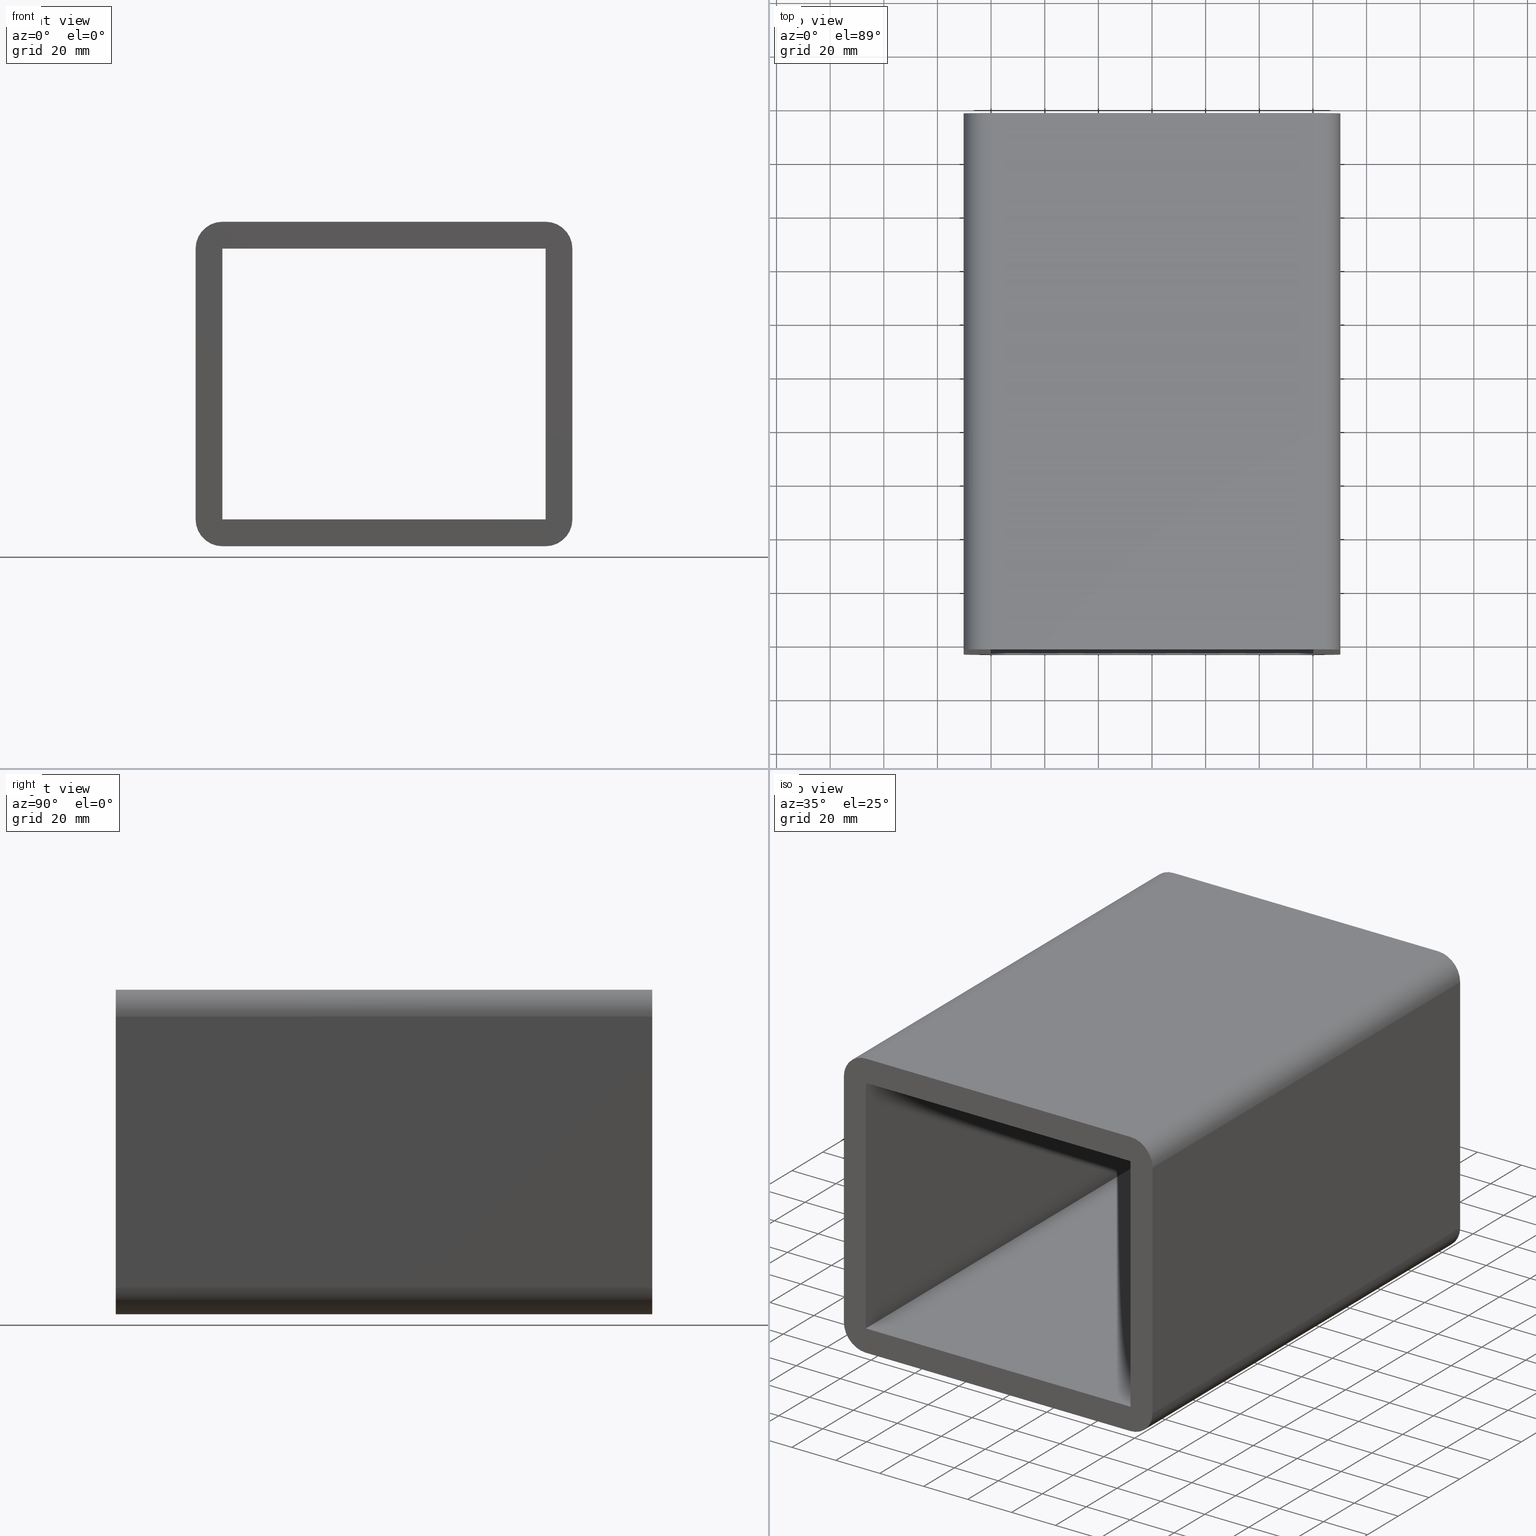
[diagram: canonical four-view strip — front | top / right | iso, engineering-drawing reading convention]
A machine part, canonical four-view strip (front | top / right | iso — engineering-drawing reading convention). The complete STEP part file that produces these views, byte-faithful:
ISO-10303-21;
HEADER;
/****************************************************************
 * Generated by software with PDElib inside                    *
 * PDElib Version v51a, created Wed 11/30/2011                  *
 * ITI Transcendata (http://www.transcendata.com/)              *
 ****************************************************************/
FILE_DESCRIPTION((''),'2;1');
FILE_NAME('C:\\RoxtecConfigurator\\CreatedFiles\\STEP\\SBTB2X1.stp','2013-02-26T13:21:57',(''),(''),'Autodesk Inventor 2013','Autodesk Inventor 2013','');
FILE_SCHEMA(('AUTOMOTIVE_DESIGN { 1 0 10303 214 1 1 1 1 }'));
ENDSEC;
DATA;
#5=APPLICATION_CONTEXT('automotive design');
#6=APPLICATION_PROTOCOL_DEFINITION('International Standard','automotive_design',2001,#5);
#7=PRODUCT_CONTEXT('',#5,'mechanical');
#8=PRODUCT('roxtec S_SF_G','roxtec S_SF_G',$,(#7));
#9=PRODUCT_RELATED_PRODUCT_CATEGORY('part',$,(#8));
#10=PRODUCT_DEFINITION_FORMATION('',$,#8);
#11=PRODUCT_DEFINITION_CONTEXT('part definition',#5,'design');
#12=PRODUCT_DEFINITION('',$,#10,#11);
#18=(NAMED_UNIT(*)PLANE_ANGLE_UNIT()SI_UNIT($,.RADIAN.));
#19=DIMENSIONAL_EXPONENTS(0.0,0.0,0.0,0.0,0.0,0.0,0.0);
#20=PLANE_ANGLE_MEASURE_WITH_UNIT(PLANE_ANGLE_MEASURE(0.0174532925),#18);
#24=(CONVERSION_BASED_UNIT('DEGREE',#20)NAMED_UNIT(#19)PLANE_ANGLE_UNIT());
#28=(NAMED_UNIT(*)SI_UNIT($,.STERADIAN.)SOLID_ANGLE_UNIT());
#32=(LENGTH_UNIT()NAMED_UNIT(*)SI_UNIT(.MILLI.,.METRE.));
#34=UNCERTAINTY_MEASURE_WITH_UNIT(LENGTH_MEASURE(0.01),#32,'DISTANCE_ACCURACY_VALUE','');
#36=(GEOMETRIC_REPRESENTATION_CONTEXT(3)GLOBAL_UNCERTAINTY_ASSIGNED_CONTEXT((#34))GLOBAL_UNIT_ASSIGNED_CONTEXT((#24,#28,#32))REPRESENTATION_CONTEXT('None','None'));
#37=AXIS2_PLACEMENT_3D('',#38,#39,#40);
#38=CARTESIAN_POINT('',(0.0,0.0,0.0));
#39=DIRECTION('',(0.0,0.0,1.0));
#40=DIRECTION('',(1.0,0.0,0.0));
#41=SHAPE_REPRESENTATION('',(#37),#36);
#42=PRODUCT_DEFINITION_SHAPE('','',#12);
#43=SHAPE_DEFINITION_REPRESENTATION(#42,#41);
#49=(NAMED_UNIT(*)PLANE_ANGLE_UNIT()SI_UNIT($,.RADIAN.));
#50=DIMENSIONAL_EXPONENTS(0.0,0.0,0.0,0.0,0.0,0.0,0.0);
#51=PLANE_ANGLE_MEASURE_WITH_UNIT(PLANE_ANGLE_MEASURE(0.0174532925),#49);
#55=(CONVERSION_BASED_UNIT('DEGREE',#51)NAMED_UNIT(#50)PLANE_ANGLE_UNIT());
#59=(NAMED_UNIT(*)SI_UNIT($,.STERADIAN.)SOLID_ANGLE_UNIT());
#63=(LENGTH_UNIT()NAMED_UNIT(*)SI_UNIT(.MILLI.,.METRE.));
#65=UNCERTAINTY_MEASURE_WITH_UNIT(LENGTH_MEASURE(0.000001),#63,'DISTANCE_ACCURACY_VALUE','');
#67=(GEOMETRIC_REPRESENTATION_CONTEXT(3)GLOBAL_UNCERTAINTY_ASSIGNED_CONTEXT((#65))GLOBAL_UNIT_ASSIGNED_CONTEXT((#55,#59,#63))REPRESENTATION_CONTEXT('','3D'));
#68=CARTESIAN_POINT('',(-60.250000000000014,0.0,-50.500000000000007));
#69=DIRECTION('',(0.0,1.0,0.0));
#70=DIRECTION('',(-0.707106781186547,0.0,-0.707106781186547));
#71=AXIS2_PLACEMENT_3D('',#68,#69,#70);
#72=CYLINDRICAL_SURFACE('',#71,10.0);
#73=CARTESIAN_POINT('',(-70.250000000000014,197.0,-50.500000000000007));
#74=VERTEX_POINT('',#73);
#75=CARTESIAN_POINT('',(-60.250000000000014,197.0,-60.500000000000007));
#76=VERTEX_POINT('',#75);
#77=CARTESIAN_POINT('',(-60.250000000000014,197.0,-50.500000000000007));
#78=DIRECTION('',(0.0,-1.0,0.0));
#79=DIRECTION('',(-0.707106781186547,0.0,-0.707106781186547));
#80=AXIS2_PLACEMENT_3D('',#77,#78,#79);
#81=CIRCLE('',#80,9.999999999999998);
#82=EDGE_CURVE('',#74,#76,#81,.T.);
#83=ORIENTED_EDGE('',*,*,#82,.T.);
#84=CARTESIAN_POINT('',(-60.250000000000014,-3.0,-60.500000000000007));
#85=VERTEX_POINT('',#84);
#86=CARTESIAN_POINT('',(-60.250000000000014,197.0,-60.500000000000007));
#87=DIRECTION('',(0.0,-1.0,0.0));
#88=VECTOR('',#87,200.0);
#89=LINE('',#86,#88);
#90=EDGE_CURVE('',#76,#85,#89,.T.);
#91=ORIENTED_EDGE('',*,*,#90,.T.);
#92=CARTESIAN_POINT('',(-70.250000000000014,-3.0,-50.500000000000007));
#93=VERTEX_POINT('',#92);
#94=CARTESIAN_POINT('',(-60.250000000000014,-3.0,-50.500000000000007));
#95=DIRECTION('',(0.0,1.0,0.0));
#96=DIRECTION('',(-0.707106781186547,0.0,-0.707106781186547));
#97=AXIS2_PLACEMENT_3D('',#94,#95,#96);
#98=CIRCLE('',#97,9.999999999999998);
#99=EDGE_CURVE('',#85,#93,#98,.T.);
#100=ORIENTED_EDGE('',*,*,#99,.T.);
#101=CARTESIAN_POINT('',(-70.250000000000014,-3.0,-50.500000000000007));
#102=DIRECTION('',(0.0,1.0,0.0));
#103=VECTOR('',#102,200.0);
#104=LINE('',#101,#103);
#105=EDGE_CURVE('',#93,#74,#104,.T.);
#106=ORIENTED_EDGE('',*,*,#105,.T.);
#107=EDGE_LOOP('',(#83,#91,#100,#106));
#108=FACE_OUTER_BOUND('',#107,.T.);
#109=ADVANCED_FACE('',(#108),#72,.T.);
#110=CARTESIAN_POINT('',(-1.053757E-014,-3.0,0.0));
#111=DIRECTION('',(0.0,1.0,0.0));
#112=DIRECTION('',(0.0,0.0,1.0));
#113=AXIS2_PLACEMENT_3D('',#110,#111,#112);
#114=PLANE('',#113);
#115=ORIENTED_EDGE('',*,*,#99,.F.);
#116=CARTESIAN_POINT('',(60.249999999999993,-3.0,-60.500000000000007));
#117=VERTEX_POINT('',#116);
#118=CARTESIAN_POINT('',(-60.25,-3.0,-60.500000000000007));
#119=DIRECTION('',(1.0,0.0,0.0));
#120=VECTOR('',#119,120.5);
#121=LINE('',#118,#120);
#122=EDGE_CURVE('',#85,#117,#121,.T.);
#123=ORIENTED_EDGE('',*,*,#122,.T.);
#124=CARTESIAN_POINT('',(70.25,-3.0,-50.500000000000007));
#125=VERTEX_POINT('',#124);
#126=CARTESIAN_POINT('',(60.249999999999993,-3.0,-50.500000000000007));
#127=DIRECTION('',(0.0,1.0,0.0));
#128=DIRECTION('',(0.707106781186547,0.0,-0.707106781186547));
#129=AXIS2_PLACEMENT_3D('',#126,#127,#128);
#130=CIRCLE('',#129,9.999999999999998);
#131=EDGE_CURVE('',#125,#117,#130,.T.);
#132=ORIENTED_EDGE('',*,*,#131,.F.);
#133=CARTESIAN_POINT('',(70.25,-3.0,50.500000000000007));
#134=VERTEX_POINT('',#133);
#135=CARTESIAN_POINT('',(70.25,-3.0,-50.500000000000007));
#136=DIRECTION('',(0.0,0.0,1.0));
#137=VECTOR('',#136,101.00000000000001);
#138=LINE('',#135,#137);
#139=EDGE_CURVE('',#125,#134,#138,.T.);
#140=ORIENTED_EDGE('',*,*,#139,.T.);
#141=CARTESIAN_POINT('',(60.249999999999993,-3.0,60.500000000000007));
#142=VERTEX_POINT('',#141);
#143=CARTESIAN_POINT('',(60.249999999999993,-3.0,50.500000000000007));
#144=DIRECTION('',(0.0,1.0,0.0));
#145=DIRECTION('',(0.707106781186547,0.0,0.707106781186547));
#146=AXIS2_PLACEMENT_3D('',#143,#144,#145);
#147=CIRCLE('',#146,9.999999999999998);
#148=EDGE_CURVE('',#142,#134,#147,.T.);
#149=ORIENTED_EDGE('',*,*,#148,.F.);
#150=CARTESIAN_POINT('',(-60.250000000000014,-3.0,60.500000000000007));
#151=VERTEX_POINT('',#150);
#152=CARTESIAN_POINT('',(60.249999999999986,-3.0,60.500000000000007));
#153=DIRECTION('',(-1.0,0.0,0.0));
#154=VECTOR('',#153,120.5);
#155=LINE('',#152,#154);
#156=EDGE_CURVE('',#142,#151,#155,.T.);
#157=ORIENTED_EDGE('',*,*,#156,.T.);
#158=CARTESIAN_POINT('',(-70.250000000000014,-3.0,50.500000000000007));
#159=VERTEX_POINT('',#158);
#160=CARTESIAN_POINT('',(-60.250000000000014,-3.0,50.500000000000007));
#161=DIRECTION('',(0.0,1.0,0.0));
#162=DIRECTION('',(-0.707106781186547,0.0,0.707106781186547));
#163=AXIS2_PLACEMENT_3D('',#160,#161,#162);
#164=CIRCLE('',#163,9.999999999999998);
#165=EDGE_CURVE('',#159,#151,#164,.T.);
#166=ORIENTED_EDGE('',*,*,#165,.F.);
#167=CARTESIAN_POINT('',(-70.250000000000014,-3.0,50.500000000000007));
#168=DIRECTION('',(0.0,0.0,-1.0));
#169=VECTOR('',#168,101.00000000000001);
#170=LINE('',#167,#169);
#171=EDGE_CURVE('',#159,#93,#170,.T.);
#172=ORIENTED_EDGE('',*,*,#171,.T.);
#173=EDGE_LOOP('',(#115,#123,#132,#140,#149,#157,#166,#172));
#174=FACE_OUTER_BOUND('',#173,.T.);
#175=CARTESIAN_POINT('',(60.25,-3.0,50.5));
#176=VERTEX_POINT('',#175);
#177=CARTESIAN_POINT('',(60.25,-3.0,-50.500000000000014));
#178=VERTEX_POINT('',#177);
#179=CARTESIAN_POINT('',(60.25,-3.0,50.5));
#180=DIRECTION('',(0.0,0.0,-1.0));
#181=VECTOR('',#180,101.00000000000001);
#182=LINE('',#179,#181);
#183=EDGE_CURVE('',#176,#178,#182,.T.);
#184=ORIENTED_EDGE('',*,*,#183,.T.);
#185=CARTESIAN_POINT('',(-60.25,-3.0,-50.500000000000014));
#186=VERTEX_POINT('',#185);
#187=CARTESIAN_POINT('',(60.25,-3.0,-50.500000000000014));
#188=DIRECTION('',(-1.0,0.0,0.0));
#189=VECTOR('',#188,120.5);
#190=LINE('',#187,#189);
#191=EDGE_CURVE('',#178,#186,#190,.T.);
#192=ORIENTED_EDGE('',*,*,#191,.T.);
#193=CARTESIAN_POINT('',(-60.25,-3.0,50.5));
#194=VERTEX_POINT('',#193);
#195=CARTESIAN_POINT('',(-60.250000000000014,-3.0,-50.500000000000014));
#196=DIRECTION('',(0.0,0.0,1.0));
#197=VECTOR('',#196,101.00000000000003);
#198=LINE('',#195,#197);
#199=EDGE_CURVE('',#186,#194,#198,.T.);
#200=ORIENTED_EDGE('',*,*,#199,.T.);
#201=CARTESIAN_POINT('',(-60.25,-3.0,50.500000000000007));
#202=DIRECTION('',(1.0,0.0,0.0));
#203=VECTOR('',#202,120.5);
#204=LINE('',#201,#203);
#205=EDGE_CURVE('',#194,#176,#204,.T.);
#206=ORIENTED_EDGE('',*,*,#205,.T.);
#207=EDGE_LOOP('',(#184,#192,#200,#206));
#208=FACE_BOUND('',#207,.T.);
#209=ADVANCED_FACE('',(#174,#208),#114,.F.);
#210=CARTESIAN_POINT('',(70.25,0.0,-60.500000000000007));
#211=DIRECTION('',(0.0,0.0,-1.0));
#212=DIRECTION('',(-1.0,0.0,0.0));
#213=AXIS2_PLACEMENT_3D('',#210,#211,#212);
#214=PLANE('',#213);
#215=ORIENTED_EDGE('',*,*,#90,.F.);
#216=CARTESIAN_POINT('',(60.249999999999993,197.0,-60.500000000000007));
#217=VERTEX_POINT('',#216);
#218=CARTESIAN_POINT('',(60.25,197.0,-60.500000000000007));
#219=DIRECTION('',(-1.0,0.0,0.0));
#220=VECTOR('',#219,120.5);
#221=LINE('',#218,#220);
#222=EDGE_CURVE('',#217,#76,#221,.T.);
#223=ORIENTED_EDGE('',*,*,#222,.F.);
#224=CARTESIAN_POINT('',(60.249999999999993,-3.0,-60.500000000000007));
#225=DIRECTION('',(0.0,1.0,0.0));
#226=VECTOR('',#225,200.0);
#227=LINE('',#224,#226);
#228=EDGE_CURVE('',#117,#217,#227,.T.);
#229=ORIENTED_EDGE('',*,*,#228,.F.);
#230=ORIENTED_EDGE('',*,*,#122,.F.);
#231=EDGE_LOOP('',(#215,#223,#229,#230));
#232=FACE_OUTER_BOUND('',#231,.T.);
#233=ADVANCED_FACE('',(#232),#214,.T.);
#234=CARTESIAN_POINT('',(60.249999999999993,0.0,-50.500000000000007));
#235=DIRECTION('',(0.0,1.0,0.0));
#236=DIRECTION('',(0.707106781186547,0.0,-0.707106781186547));
#237=AXIS2_PLACEMENT_3D('',#234,#235,#236);
#238=CYLINDRICAL_SURFACE('',#237,10.0);
#239=CARTESIAN_POINT('',(70.25,197.0,-50.500000000000007));
#240=VERTEX_POINT('',#239);
#241=CARTESIAN_POINT('',(60.249999999999993,197.0,-50.500000000000007));
#242=DIRECTION('',(0.0,-1.0,0.0));
#243=DIRECTION('',(0.707106781186547,0.0,-0.707106781186547));
#244=AXIS2_PLACEMENT_3D('',#241,#242,#243);
#245=CIRCLE('',#244,9.999999999999998);
#246=EDGE_CURVE('',#217,#240,#245,.T.);
#247=ORIENTED_EDGE('',*,*,#246,.T.);
#248=CARTESIAN_POINT('',(70.25,197.0,-50.500000000000007));
#249=DIRECTION('',(0.0,-1.0,0.0));
#250=VECTOR('',#249,200.0);
#251=LINE('',#248,#250);
#252=EDGE_CURVE('',#240,#125,#251,.T.);
#253=ORIENTED_EDGE('',*,*,#252,.T.);
#254=ORIENTED_EDGE('',*,*,#131,.T.);
#255=ORIENTED_EDGE('',*,*,#228,.T.);
#256=EDGE_LOOP('',(#247,#253,#254,#255));
#257=FACE_OUTER_BOUND('',#256,.T.);
#258=ADVANCED_FACE('',(#257),#238,.T.);
#259=CARTESIAN_POINT('',(60.249999999999993,0.0,50.500000000000007));
#260=DIRECTION('',(0.0,-1.0,0.0));
#261=DIRECTION('',(0.707106781186547,0.0,0.707106781186547));
#262=AXIS2_PLACEMENT_3D('',#259,#260,#261);
#263=CYLINDRICAL_SURFACE('',#262,10.0);
#264=ORIENTED_EDGE('',*,*,#148,.T.);
#265=CARTESIAN_POINT('',(70.25,197.0,50.500000000000007));
#266=VERTEX_POINT('',#265);
#267=CARTESIAN_POINT('',(70.25,-3.0,50.500000000000007));
#268=DIRECTION('',(0.0,1.0,0.0));
#269=VECTOR('',#268,200.0);
#270=LINE('',#267,#269);
#271=EDGE_CURVE('',#134,#266,#270,.T.);
#272=ORIENTED_EDGE('',*,*,#271,.T.);
#273=CARTESIAN_POINT('',(60.249999999999993,197.0,60.500000000000007));
#274=VERTEX_POINT('',#273);
#275=CARTESIAN_POINT('',(60.249999999999993,197.0,50.500000000000007));
#276=DIRECTION('',(0.0,-1.0,0.0));
#277=DIRECTION('',(0.707106781186547,0.0,0.707106781186547));
#278=AXIS2_PLACEMENT_3D('',#275,#276,#277);
#279=CIRCLE('',#278,9.999999999999998);
#280=EDGE_CURVE('',#266,#274,#279,.T.);
#281=ORIENTED_EDGE('',*,*,#280,.T.);
#282=CARTESIAN_POINT('',(60.249999999999993,197.0,60.500000000000007));
#283=DIRECTION('',(0.0,-1.0,0.0));
#284=VECTOR('',#283,200.0);
#285=LINE('',#282,#284);
#286=EDGE_CURVE('',#274,#142,#285,.T.);
#287=ORIENTED_EDGE('',*,*,#286,.T.);
#288=EDGE_LOOP('',(#264,#272,#281,#287));
#289=FACE_OUTER_BOUND('',#288,.T.);
#290=ADVANCED_FACE('',(#289),#263,.T.);
#291=CARTESIAN_POINT('',(-70.250000000000014,0.0,60.500000000000007));
#292=DIRECTION('',(0.0,0.0,1.0));
#293=DIRECTION('',(1.0,0.0,0.0));
#294=AXIS2_PLACEMENT_3D('',#291,#292,#293);
#295=PLANE('',#294);
#296=ORIENTED_EDGE('',*,*,#286,.F.);
#297=CARTESIAN_POINT('',(-60.250000000000014,197.0,60.500000000000007));
#298=VERTEX_POINT('',#297);
#299=CARTESIAN_POINT('',(-60.250000000000014,197.0,60.500000000000007));
#300=DIRECTION('',(1.0,0.0,0.0));
#301=VECTOR('',#300,120.5);
#302=LINE('',#299,#301);
#303=EDGE_CURVE('',#298,#274,#302,.T.);
#304=ORIENTED_EDGE('',*,*,#303,.F.);
#305=CARTESIAN_POINT('',(-60.250000000000014,-3.0,60.500000000000007));
#306=DIRECTION('',(0.0,1.0,0.0));
#307=VECTOR('',#306,200.0);
#308=LINE('',#305,#307);
#309=EDGE_CURVE('',#151,#298,#308,.T.);
#310=ORIENTED_EDGE('',*,*,#309,.F.);
#311=ORIENTED_EDGE('',*,*,#156,.F.);
#312=EDGE_LOOP('',(#296,#304,#310,#311));
#313=FACE_OUTER_BOUND('',#312,.T.);
#314=ADVANCED_FACE('',(#313),#295,.T.);
#315=CARTESIAN_POINT('',(-60.250000000000014,0.0,50.500000000000007));
#316=DIRECTION('',(0.0,1.0,0.0));
#317=DIRECTION('',(-0.707106781186547,0.0,0.707106781186547));
#318=AXIS2_PLACEMENT_3D('',#315,#316,#317);
#319=CYLINDRICAL_SURFACE('',#318,10.0);
#320=CARTESIAN_POINT('',(-70.250000000000014,197.0,50.500000000000007));
#321=VERTEX_POINT('',#320);
#322=CARTESIAN_POINT('',(-60.250000000000014,197.0,50.500000000000007));
#323=DIRECTION('',(0.0,-1.0,0.0));
#324=DIRECTION('',(-0.707106781186547,0.0,0.707106781186547));
#325=AXIS2_PLACEMENT_3D('',#322,#323,#324);
#326=CIRCLE('',#325,9.999999999999998);
#327=EDGE_CURVE('',#298,#321,#326,.T.);
#328=ORIENTED_EDGE('',*,*,#327,.T.);
#329=CARTESIAN_POINT('',(-70.250000000000014,197.0,50.500000000000007));
#330=DIRECTION('',(0.0,-1.0,0.0));
#331=VECTOR('',#330,200.0);
#332=LINE('',#329,#331);
#333=EDGE_CURVE('',#321,#159,#332,.T.);
#334=ORIENTED_EDGE('',*,*,#333,.T.);
#335=ORIENTED_EDGE('',*,*,#165,.T.);
#336=ORIENTED_EDGE('',*,*,#309,.T.);
#337=EDGE_LOOP('',(#328,#334,#335,#336));
#338=FACE_OUTER_BOUND('',#337,.T.);
#339=ADVANCED_FACE('',(#338),#319,.T.);
#340=CARTESIAN_POINT('',(60.25,0.0,50.500000000000007));
#341=DIRECTION('',(1.0,0.0,0.0));
#342=DIRECTION('',(0.0,0.0,-1.0));
#343=AXIS2_PLACEMENT_3D('',#340,#341,#342);
#344=PLANE('',#343);
#345=CARTESIAN_POINT('',(60.25,197.0,-50.500000000000014));
#346=VERTEX_POINT('',#345);
#347=CARTESIAN_POINT('',(60.25,197.0,-50.500000000000014));
#348=DIRECTION('',(0.0,-1.0,0.0));
#349=VECTOR('',#348,200.0);
#350=LINE('',#347,#349);
#351=EDGE_CURVE('',#346,#178,#350,.T.);
#352=ORIENTED_EDGE('',*,*,#351,.T.);
#353=ORIENTED_EDGE('',*,*,#183,.F.);
#354=CARTESIAN_POINT('',(60.25,197.0,50.5));
#355=VERTEX_POINT('',#354);
#356=CARTESIAN_POINT('',(60.25,-3.0,50.500000000000007));
#357=DIRECTION('',(0.0,1.0,0.0));
#358=VECTOR('',#357,200.0);
#359=LINE('',#356,#358);
#360=EDGE_CURVE('',#176,#355,#359,.T.);
#361=ORIENTED_EDGE('',*,*,#360,.T.);
#362=CARTESIAN_POINT('',(60.25,197.0,-50.500000000000014));
#363=DIRECTION('',(0.0,0.0,1.0));
#364=VECTOR('',#363,101.00000000000001);
#365=LINE('',#362,#364);
#366=EDGE_CURVE('',#346,#355,#365,.T.);
#367=ORIENTED_EDGE('',*,*,#366,.F.);
#368=EDGE_LOOP('',(#352,#353,#361,#367));
#369=FACE_OUTER_BOUND('',#368,.T.);
#370=ADVANCED_FACE('',(#369),#344,.F.);
#371=CARTESIAN_POINT('',(-60.250000000000014,0.0,50.500000000000007));
#372=DIRECTION('',(0.0,0.0,1.0));
#373=DIRECTION('',(1.0,0.0,0.0));
#374=AXIS2_PLACEMENT_3D('',#371,#372,#373);
#375=PLANE('',#374);
#376=ORIENTED_EDGE('',*,*,#360,.F.);
#377=ORIENTED_EDGE('',*,*,#205,.F.);
#378=CARTESIAN_POINT('',(-60.25,197.0,50.5));
#379=VERTEX_POINT('',#378);
#380=CARTESIAN_POINT('',(-60.250000000000014,-3.0,50.500000000000007));
#381=DIRECTION('',(0.0,1.0,0.0));
#382=VECTOR('',#381,200.0);
#383=LINE('',#380,#382);
#384=EDGE_CURVE('',#194,#379,#383,.T.);
#385=ORIENTED_EDGE('',*,*,#384,.T.);
#386=CARTESIAN_POINT('',(60.25,197.0,50.500000000000007));
#387=DIRECTION('',(-1.0,0.0,0.0));
#388=VECTOR('',#387,120.5);
#389=LINE('',#386,#388);
#390=EDGE_CURVE('',#355,#379,#389,.T.);
#391=ORIENTED_EDGE('',*,*,#390,.F.);
#392=EDGE_LOOP('',(#376,#377,#385,#391));
#393=FACE_OUTER_BOUND('',#392,.T.);
#394=ADVANCED_FACE('',(#393),#375,.F.);
#395=CARTESIAN_POINT('',(-60.250000000000014,0.0,-50.500000000000014));
#396=DIRECTION('',(-1.0,0.0,0.0));
#397=DIRECTION('',(0.0,0.0,1.0));
#398=AXIS2_PLACEMENT_3D('',#395,#396,#397);
#399=PLANE('',#398);
#400=ORIENTED_EDGE('',*,*,#384,.F.);
#401=ORIENTED_EDGE('',*,*,#199,.F.);
#402=CARTESIAN_POINT('',(-60.25,197.0,-50.500000000000014));
#403=VERTEX_POINT('',#402);
#404=CARTESIAN_POINT('',(-60.250000000000014,-3.0,-50.500000000000014));
#405=DIRECTION('',(0.0,1.0,0.0));
#406=VECTOR('',#405,200.0);
#407=LINE('',#404,#406);
#408=EDGE_CURVE('',#186,#403,#407,.T.);
#409=ORIENTED_EDGE('',*,*,#408,.T.);
#410=CARTESIAN_POINT('',(-60.250000000000014,197.0,50.500000000000007));
#411=DIRECTION('',(0.0,0.0,-1.0));
#412=VECTOR('',#411,101.00000000000003);
#413=LINE('',#410,#412);
#414=EDGE_CURVE('',#379,#403,#413,.T.);
#415=ORIENTED_EDGE('',*,*,#414,.F.);
#416=EDGE_LOOP('',(#400,#401,#409,#415));
#417=FACE_OUTER_BOUND('',#416,.T.);
#418=ADVANCED_FACE('',(#417),#399,.F.);
#419=CARTESIAN_POINT('',(60.25,0.0,-50.500000000000014));
#420=DIRECTION('',(0.0,0.0,-1.0));
#421=DIRECTION('',(-1.0,0.0,0.0));
#422=AXIS2_PLACEMENT_3D('',#419,#420,#421);
#423=PLANE('',#422);
#424=ORIENTED_EDGE('',*,*,#408,.F.);
#425=ORIENTED_EDGE('',*,*,#191,.F.);
#426=ORIENTED_EDGE('',*,*,#351,.F.);
#427=CARTESIAN_POINT('',(-60.25,197.0,-50.500000000000014));
#428=DIRECTION('',(1.0,0.0,0.0));
#429=VECTOR('',#428,120.5);
#430=LINE('',#427,#429);
#431=EDGE_CURVE('',#403,#346,#430,.T.);
#432=ORIENTED_EDGE('',*,*,#431,.F.);
#433=EDGE_LOOP('',(#424,#425,#426,#432));
#434=FACE_OUTER_BOUND('',#433,.T.);
#435=ADVANCED_FACE('',(#434),#423,.F.);
#436=CARTESIAN_POINT('',(-70.250000000000014,0.0,-60.500000000000007));
#437=DIRECTION('',(-1.0,0.0,0.0));
#438=DIRECTION('',(0.0,0.0,1.0));
#439=AXIS2_PLACEMENT_3D('',#436,#437,#438);
#440=PLANE('',#439);
#441=ORIENTED_EDGE('',*,*,#105,.F.);
#442=ORIENTED_EDGE('',*,*,#171,.F.);
#443=ORIENTED_EDGE('',*,*,#333,.F.);
#444=CARTESIAN_POINT('',(-70.250000000000014,197.0,-50.500000000000007));
#445=DIRECTION('',(0.0,0.0,1.0));
#446=VECTOR('',#445,101.00000000000001);
#447=LINE('',#444,#446);
#448=EDGE_CURVE('',#74,#321,#447,.T.);
#449=ORIENTED_EDGE('',*,*,#448,.F.);
#450=EDGE_LOOP('',(#441,#442,#443,#449));
#451=FACE_OUTER_BOUND('',#450,.T.);
#452=ADVANCED_FACE('',(#451),#440,.T.);
#453=CARTESIAN_POINT('',(70.25,0.0,60.500000000000007));
#454=DIRECTION('',(1.0,0.0,0.0));
#455=DIRECTION('',(0.0,0.0,-1.0));
#456=AXIS2_PLACEMENT_3D('',#453,#454,#455);
#457=PLANE('',#456);
#458=ORIENTED_EDGE('',*,*,#252,.F.);
#459=CARTESIAN_POINT('',(70.25,197.0,50.500000000000007));
#460=DIRECTION('',(0.0,0.0,-1.0));
#461=VECTOR('',#460,101.00000000000001);
#462=LINE('',#459,#461);
#463=EDGE_CURVE('',#266,#240,#462,.T.);
#464=ORIENTED_EDGE('',*,*,#463,.F.);
#465=ORIENTED_EDGE('',*,*,#271,.F.);
#466=ORIENTED_EDGE('',*,*,#139,.F.);
#467=EDGE_LOOP('',(#458,#464,#465,#466));
#468=FACE_OUTER_BOUND('',#467,.T.);
#469=ADVANCED_FACE('',(#468),#457,.T.);
#470=CARTESIAN_POINT('',(-1.053757E-014,197.0,0.0));
#471=DIRECTION('',(0.0,1.0,0.0));
#472=DIRECTION('',(0.0,0.0,1.0));
#473=AXIS2_PLACEMENT_3D('',#470,#471,#472);
#474=PLANE('',#473);
#475=ORIENTED_EDGE('',*,*,#82,.F.);
#476=ORIENTED_EDGE('',*,*,#448,.T.);
#477=ORIENTED_EDGE('',*,*,#327,.F.);
#478=ORIENTED_EDGE('',*,*,#303,.T.);
#479=ORIENTED_EDGE('',*,*,#280,.F.);
#480=ORIENTED_EDGE('',*,*,#463,.T.);
#481=ORIENTED_EDGE('',*,*,#246,.F.);
#482=ORIENTED_EDGE('',*,*,#222,.T.);
#483=EDGE_LOOP('',(#475,#476,#477,#478,#479,#480,#481,#482));
#484=FACE_OUTER_BOUND('',#483,.T.);
#485=ORIENTED_EDGE('',*,*,#366,.T.);
#486=ORIENTED_EDGE('',*,*,#390,.T.);
#487=ORIENTED_EDGE('',*,*,#414,.T.);
#488=ORIENTED_EDGE('',*,*,#431,.T.);
#489=EDGE_LOOP('',(#485,#486,#487,#488));
#490=FACE_BOUND('',#489,.T.);
#491=ADVANCED_FACE('',(#484,#490),#474,.T.);
#492=CLOSED_SHELL('',(#109,#209,#233,#258,#290,#314,#339,#370,#394,#418,#435,#452,#469,#491));
#493=MANIFOLD_SOLID_BREP('Solid1',#492);
#494=COLOUR_RGB('Silicon Nitride - Polished',0.800000011920929,0.796078443527222,0.701960802078247);
#495=FILL_AREA_STYLE_COLOUR('Silicon Nitride - Polished',#494);
#496=FILL_AREA_STYLE('Silicon Nitride - Polished',(#495));
#497=SURFACE_STYLE_FILL_AREA(#496);
#498=SURFACE_SIDE_STYLE('Silicon Nitride - Polished',(#497));
#499=SURFACE_STYLE_USAGE(.BOTH.,#498);
#500=PRESENTATION_STYLE_ASSIGNMENT((#499));
#501=STYLED_ITEM('',(#500),#493);
#502=MECHANICAL_DESIGN_GEOMETRIC_PRESENTATION_REPRESENTATION('',(#501),#36);
#503=ADVANCED_BREP_SHAPE_REPRESENTATION('ABSR',(#493),#36);
#504=SHAPE_REPRESENTATION_RELATIONSHIP('SRR','None',#503,#41);
ENDSEC;
END-ISO-10303-21;
